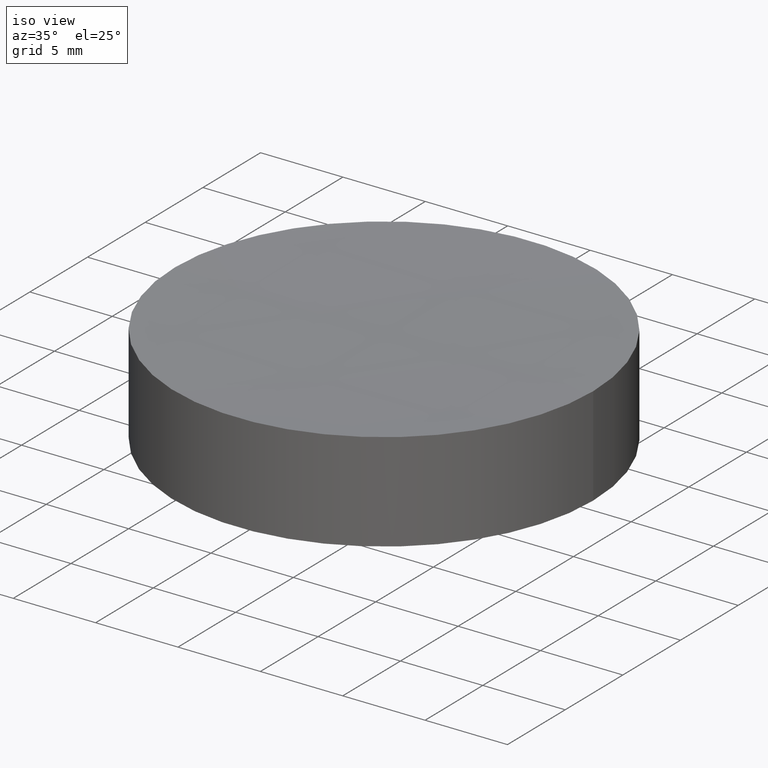
[diagram: clean part render]
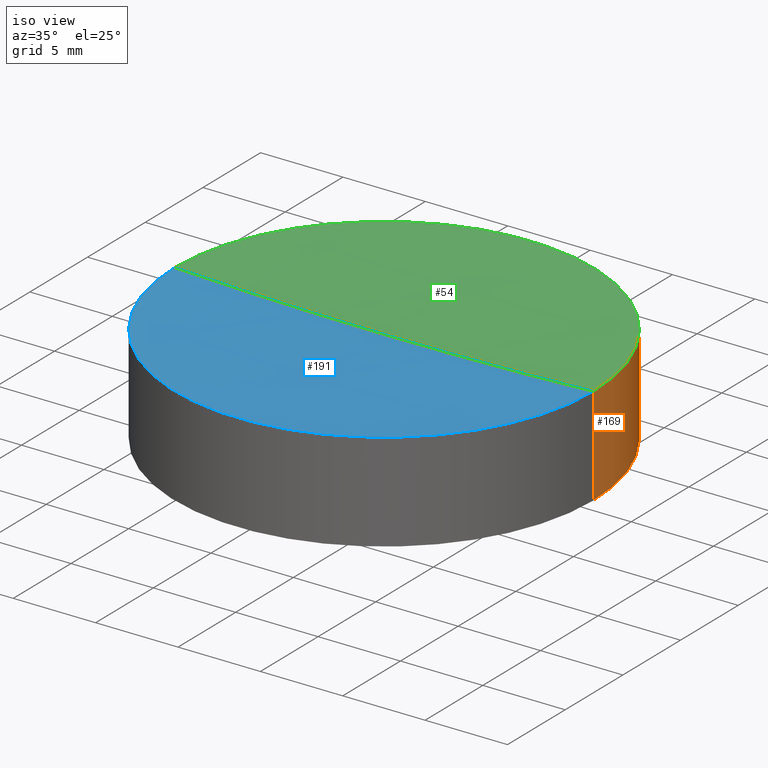
[diagram: same view with three faces highlighted in distinct colors, each labeled with its STEP entity id]
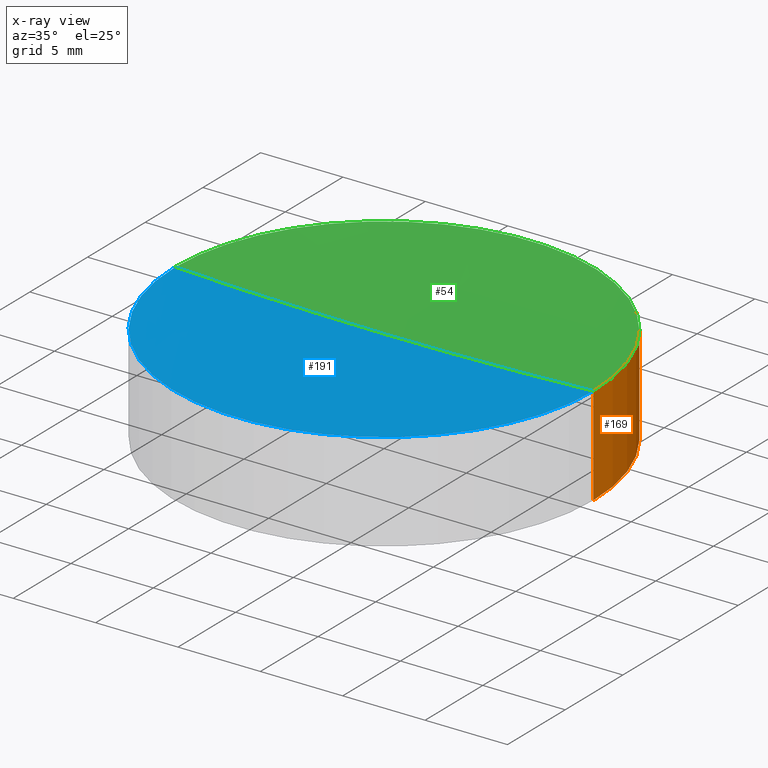
[diagram: x-ray of the same camera — body ghosted, the three highlighted faces saturated]
A machine part, iso view with three faces highlighted in distinct colors.
The next image is the same camera in x-ray (body ghosted, the three faces saturated) — at least one of them is partly hidden behind the body in this view.
Their STEP definitions:

[orange] entity #169 — the highlighted cylindrical surface (partial cylindrical patch) has radius 12.7 mm, axis along (-0, -0, -1).
#7 = CARTESIAN_POINT ( 'NONE',  ( 3.816391647148975608E-14, 0.000000000000000000, 6.000000000000005329 ) ) ;
#8 = CARTESIAN_POINT ( 'NONE',  ( -12.69999999999999929, 0.000000000000000000, 0.000000000000000000 ) ) ;
#12 = DIRECTION ( 'NONE',  ( 1.000000000000000000, 0.000000000000000000, 0.000000000000000000 ) ) ;
#13 = CARTESIAN_POINT ( 'NONE',  ( 0.000000000000000000, 0.000000000000000000, 0.000000000000000000 ) ) ;
#20 = CARTESIAN_POINT ( 'NONE',  ( -12.69999999999999929, 0.000000000000000000, 6.000000000000000000 ) ) ;
#27 = CARTESIAN_POINT ( 'NONE',  ( 12.69999999999999929, 1.555301434917138433E-15, 0.000000000000000000 ) ) ;
#40 = CARTESIAN_POINT ( 'NONE',  ( 12.69999999999999929, 1.555301434917138433E-15, 6.000000000000000000 ) ) ;
#41 = VECTOR ( 'NONE', #101, 1000.000000000000000 ) ;
#45 = EDGE_CURVE ( 'NONE', #74, #57, #50, .T. ) ;
#50 = LINE ( 'NONE', #20, #67 ) ;
#52 = CIRCLE ( 'NONE', #134, 12.69999999999978257 ) ;
#57 = VERTEX_POINT ( 'NONE', #8 ) ;
#59 = CARTESIAN_POINT ( 'NONE',  ( 0.000000000000000000, 0.000000000000000000, 6.000000000000000000 ) ) ;
#67 = VECTOR ( 'NONE', #96, 1000.000000000000000 ) ;
#72 = CARTESIAN_POINT ( 'NONE',  ( -12.69999999999974527, 0.000000000000000000, 6.000000000000005329 ) ) ;
#74 = VERTEX_POINT ( 'NONE', #72 ) ;
#82 = EDGE_LOOP ( 'NONE', ( #116, #195, #147, #99 ) ) ;
#86 = DIRECTION ( 'NONE',  ( 1.000000000000000000, 0.000000000000000000, 0.000000000000000000 ) ) ;
#96 = DIRECTION ( 'NONE',  ( -0.000000000000000000, -0.000000000000000000, -1.000000000000000000 ) ) ;
#99 = ORIENTED_EDGE ( 'NONE', *, *, #45, .F. ) ;
#101 = DIRECTION ( 'NONE',  ( -0.000000000000000000, -0.000000000000000000, -1.000000000000000000 ) ) ;
#116 = ORIENTED_EDGE ( 'NONE', *, *, #127, .T. ) ;
#117 = DIRECTION ( 'NONE',  ( -0.000000000000000000, -0.000000000000000000, -1.000000000000000000 ) ) ;
#118 = AXIS2_PLACEMENT_3D ( 'NONE', #13, #171, #12 ) ;
#127 = EDGE_CURVE ( 'NONE', #74, #165, #52, .T. ) ;
#134 = AXIS2_PLACEMENT_3D ( 'NONE', #7, #153, #86 ) ;
#139 = CYLINDRICAL_SURFACE ( 'NONE', #186, 12.69999999999999929 ) ;
#147 = ORIENTED_EDGE ( 'NONE', *, *, #155, .T. ) ;
#153 = DIRECTION ( 'NONE',  ( -0.000000000000000000, -0.000000000000000000, -1.000000000000000000 ) ) ;
#155 = EDGE_CURVE ( 'NONE', #181, #57, #167, .T. ) ;
#165 = VERTEX_POINT ( 'NONE', #199 ) ;
#166 = DIRECTION ( 'NONE',  ( -1.000000000000000000, 0.000000000000000000, 0.000000000000000000 ) ) ;
#167 = CIRCLE ( 'NONE', #118, 12.69999999999999929 ) ;
#168 = FACE_OUTER_BOUND ( 'NONE', #82, .T. ) ;
#169 = ADVANCED_FACE ( 'NONE', ( #168 ), #139, .T. ) ;
#171 = DIRECTION ( 'NONE',  ( 0.000000000000000000, 0.000000000000000000, 1.000000000000000000 ) ) ;
#181 = VERTEX_POINT ( 'NONE', #27 ) ;
#183 = LINE ( 'NONE', #40, #41 ) ;
#184 = EDGE_CURVE ( 'NONE', #165, #181, #183, .T. ) ;
#186 = AXIS2_PLACEMENT_3D ( 'NONE', #59, #117, #166 ) ;
#195 = ORIENTED_EDGE ( 'NONE', *, *, #184, .T. ) ;
#199 = CARTESIAN_POINT ( 'NONE',  ( 12.69999999999982165, 1.555301434917127783E-15, 6.000000000000005329 ) ) ;

[blue] entity #191 — the highlighted spherical surface has radius 300 mm.
#9 = VERTEX_POINT ( 'NONE', #39 ) ;
#11 = AXIS2_PLACEMENT_3D ( 'NONE', #60, #43, #200 ) ;
#14 = CARTESIAN_POINT ( 'NONE',  ( 3.816391647148975608E-14, 0.000000000000000000, 305.7310627879599565 ) ) ;
#19 = EDGE_CURVE ( 'NONE', #165, #74, #125, .T. ) ;
#23 = ORIENTED_EDGE ( 'NONE', *, *, #94, .F. ) ;
#25 = CARTESIAN_POINT ( 'NONE',  ( 3.816391647148975608E-14, 0.000000000000000000, 6.000000000000005329 ) ) ;
#28 = AXIS2_PLACEMENT_3D ( 'NONE', #14, #122, #58 ) ;
#35 = DIRECTION ( 'NONE',  ( 0.000000000000000000, 0.000000000000000000, 1.000000000000000000 ) ) ;
#38 = EDGE_CURVE ( 'NONE', #165, #9, #180, .T. ) ;
#39 = CARTESIAN_POINT ( 'NONE',  ( 5.653361845870005354E-14, 0.000000000000000000, 5.731062787959984028 ) ) ;
#43 = DIRECTION ( 'NONE',  ( 0.000000000000000000, -1.000000000000000000, -0.000000000000000000 ) ) ;
#58 = DIRECTION ( 'NONE',  ( 1.000000000000000000, 1.224646799147353207E-16, 0.000000000000000000 ) ) ;
#60 = CARTESIAN_POINT ( 'NONE',  ( 3.816391647148975608E-14, 0.000000000000000000, 305.7310627879599565 ) ) ;
#72 = CARTESIAN_POINT ( 'NONE',  ( -12.69999999999974527, 0.000000000000000000, 6.000000000000005329 ) ) ;
#74 = VERTEX_POINT ( 'NONE', #72 ) ;
#77 = FACE_OUTER_BOUND ( 'NONE', #114, .T. ) ;
#88 = SPHERICAL_SURFACE ( 'NONE', #11, 300.0000000000000000 ) ;
#92 = AXIS2_PLACEMENT_3D ( 'NONE', #196, #178, #35 ) ;
#94 = EDGE_CURVE ( 'NONE', #74, #9, #152, .T. ) ;
#98 = ORIENTED_EDGE ( 'NONE', *, *, #38, .T. ) ;
#114 = EDGE_LOOP ( 'NONE', ( #23, #149, #98 ) ) ;
#122 = DIRECTION ( 'NONE',  ( 1.224646799147353207E-16, -1.000000000000000000, 0.000000000000000000 ) ) ;
#125 = CIRCLE ( 'NONE', #141, 12.69999999999978257 ) ;
#137 = DIRECTION ( 'NONE',  ( 1.000000000000000000, 0.000000000000000000, 0.000000000000000000 ) ) ;
#141 = AXIS2_PLACEMENT_3D ( 'NONE', #25, #151, #137 ) ;
#149 = ORIENTED_EDGE ( 'NONE', *, *, #19, .F. ) ;
#151 = DIRECTION ( 'NONE',  ( -0.000000000000000000, -0.000000000000000000, -1.000000000000000000 ) ) ;
#152 = CIRCLE ( 'NONE', #28, 300.0000000000000000 ) ;
#165 = VERTEX_POINT ( 'NONE', #199 ) ;
#178 = DIRECTION ( 'NONE',  ( 0.000000000000000000, 1.000000000000000000, -0.000000000000000000 ) ) ;
#180 = CIRCLE ( 'NONE', #92, 300.0000000000000000 ) ;
#191 = ADVANCED_FACE ( 'NONE', ( #77 ), #88, .F. ) ;
#196 = CARTESIAN_POINT ( 'NONE',  ( 3.816391647148975608E-14, 0.000000000000000000, 305.7310627879599565 ) ) ;
#199 = CARTESIAN_POINT ( 'NONE',  ( 12.69999999999982165, 1.555301434917127783E-15, 6.000000000000005329 ) ) ;
#200 = DIRECTION ( 'NONE',  ( 1.000000000000000000, 0.000000000000000000, 0.000000000000000000 ) ) ;

[green] entity #54 — the highlighted spherical surface has radius 300 mm.
#7 = CARTESIAN_POINT ( 'NONE',  ( 3.816391647148975608E-14, 0.000000000000000000, 6.000000000000005329 ) ) ;
#9 = VERTEX_POINT ( 'NONE', #39 ) ;
#14 = CARTESIAN_POINT ( 'NONE',  ( 3.816391647148975608E-14, 0.000000000000000000, 305.7310627879599565 ) ) ;
#28 = AXIS2_PLACEMENT_3D ( 'NONE', #14, #122, #58 ) ;
#34 = FACE_OUTER_BOUND ( 'NONE', #83, .T. ) ;
#35 = DIRECTION ( 'NONE',  ( 0.000000000000000000, 0.000000000000000000, 1.000000000000000000 ) ) ;
#38 = EDGE_CURVE ( 'NONE', #165, #9, #180, .T. ) ;
#39 = CARTESIAN_POINT ( 'NONE',  ( 5.653361845870005354E-14, 0.000000000000000000, 5.731062787959984028 ) ) ;
#52 = CIRCLE ( 'NONE', #134, 12.69999999999978257 ) ;
#54 = ADVANCED_FACE ( 'NONE', ( #34 ), #144, .F. ) ;
#55 = ORIENTED_EDGE ( 'NONE', *, *, #127, .F. ) ;
#58 = DIRECTION ( 'NONE',  ( 1.000000000000000000, 1.224646799147353207E-16, 0.000000000000000000 ) ) ;
#71 = CARTESIAN_POINT ( 'NONE',  ( 3.816391647148975608E-14, 0.000000000000000000, 305.7310627879599565 ) ) ;
#72 = CARTESIAN_POINT ( 'NONE',  ( -12.69999999999974527, 0.000000000000000000, 6.000000000000005329 ) ) ;
#74 = VERTEX_POINT ( 'NONE', #72 ) ;
#83 = EDGE_LOOP ( 'NONE', ( #55, #100, #194 ) ) ;
#85 = AXIS2_PLACEMENT_3D ( 'NONE', #71, #131, #132 ) ;
#86 = DIRECTION ( 'NONE',  ( 1.000000000000000000, 0.000000000000000000, 0.000000000000000000 ) ) ;
#92 = AXIS2_PLACEMENT_3D ( 'NONE', #196, #178, #35 ) ;
#94 = EDGE_CURVE ( 'NONE', #74, #9, #152, .T. ) ;
#100 = ORIENTED_EDGE ( 'NONE', *, *, #94, .T. ) ;
#122 = DIRECTION ( 'NONE',  ( 1.224646799147353207E-16, -1.000000000000000000, 0.000000000000000000 ) ) ;
#127 = EDGE_CURVE ( 'NONE', #74, #165, #52, .T. ) ;
#131 = DIRECTION ( 'NONE',  ( 0.000000000000000000, -1.000000000000000000, -0.000000000000000000 ) ) ;
#132 = DIRECTION ( 'NONE',  ( 1.000000000000000000, 0.000000000000000000, 0.000000000000000000 ) ) ;
#134 = AXIS2_PLACEMENT_3D ( 'NONE', #7, #153, #86 ) ;
#144 = SPHERICAL_SURFACE ( 'NONE', #85, 300.0000000000000000 ) ;
#152 = CIRCLE ( 'NONE', #28, 300.0000000000000000 ) ;
#153 = DIRECTION ( 'NONE',  ( -0.000000000000000000, -0.000000000000000000, -1.000000000000000000 ) ) ;
#165 = VERTEX_POINT ( 'NONE', #199 ) ;
#178 = DIRECTION ( 'NONE',  ( 0.000000000000000000, 1.000000000000000000, -0.000000000000000000 ) ) ;
#180 = CIRCLE ( 'NONE', #92, 300.0000000000000000 ) ;
#194 = ORIENTED_EDGE ( 'NONE', *, *, #38, .F. ) ;
#196 = CARTESIAN_POINT ( 'NONE',  ( 3.816391647148975608E-14, 0.000000000000000000, 305.7310627879599565 ) ) ;
#199 = CARTESIAN_POINT ( 'NONE',  ( 12.69999999999982165, 1.555301434917127783E-15, 6.000000000000005329 ) ) ;